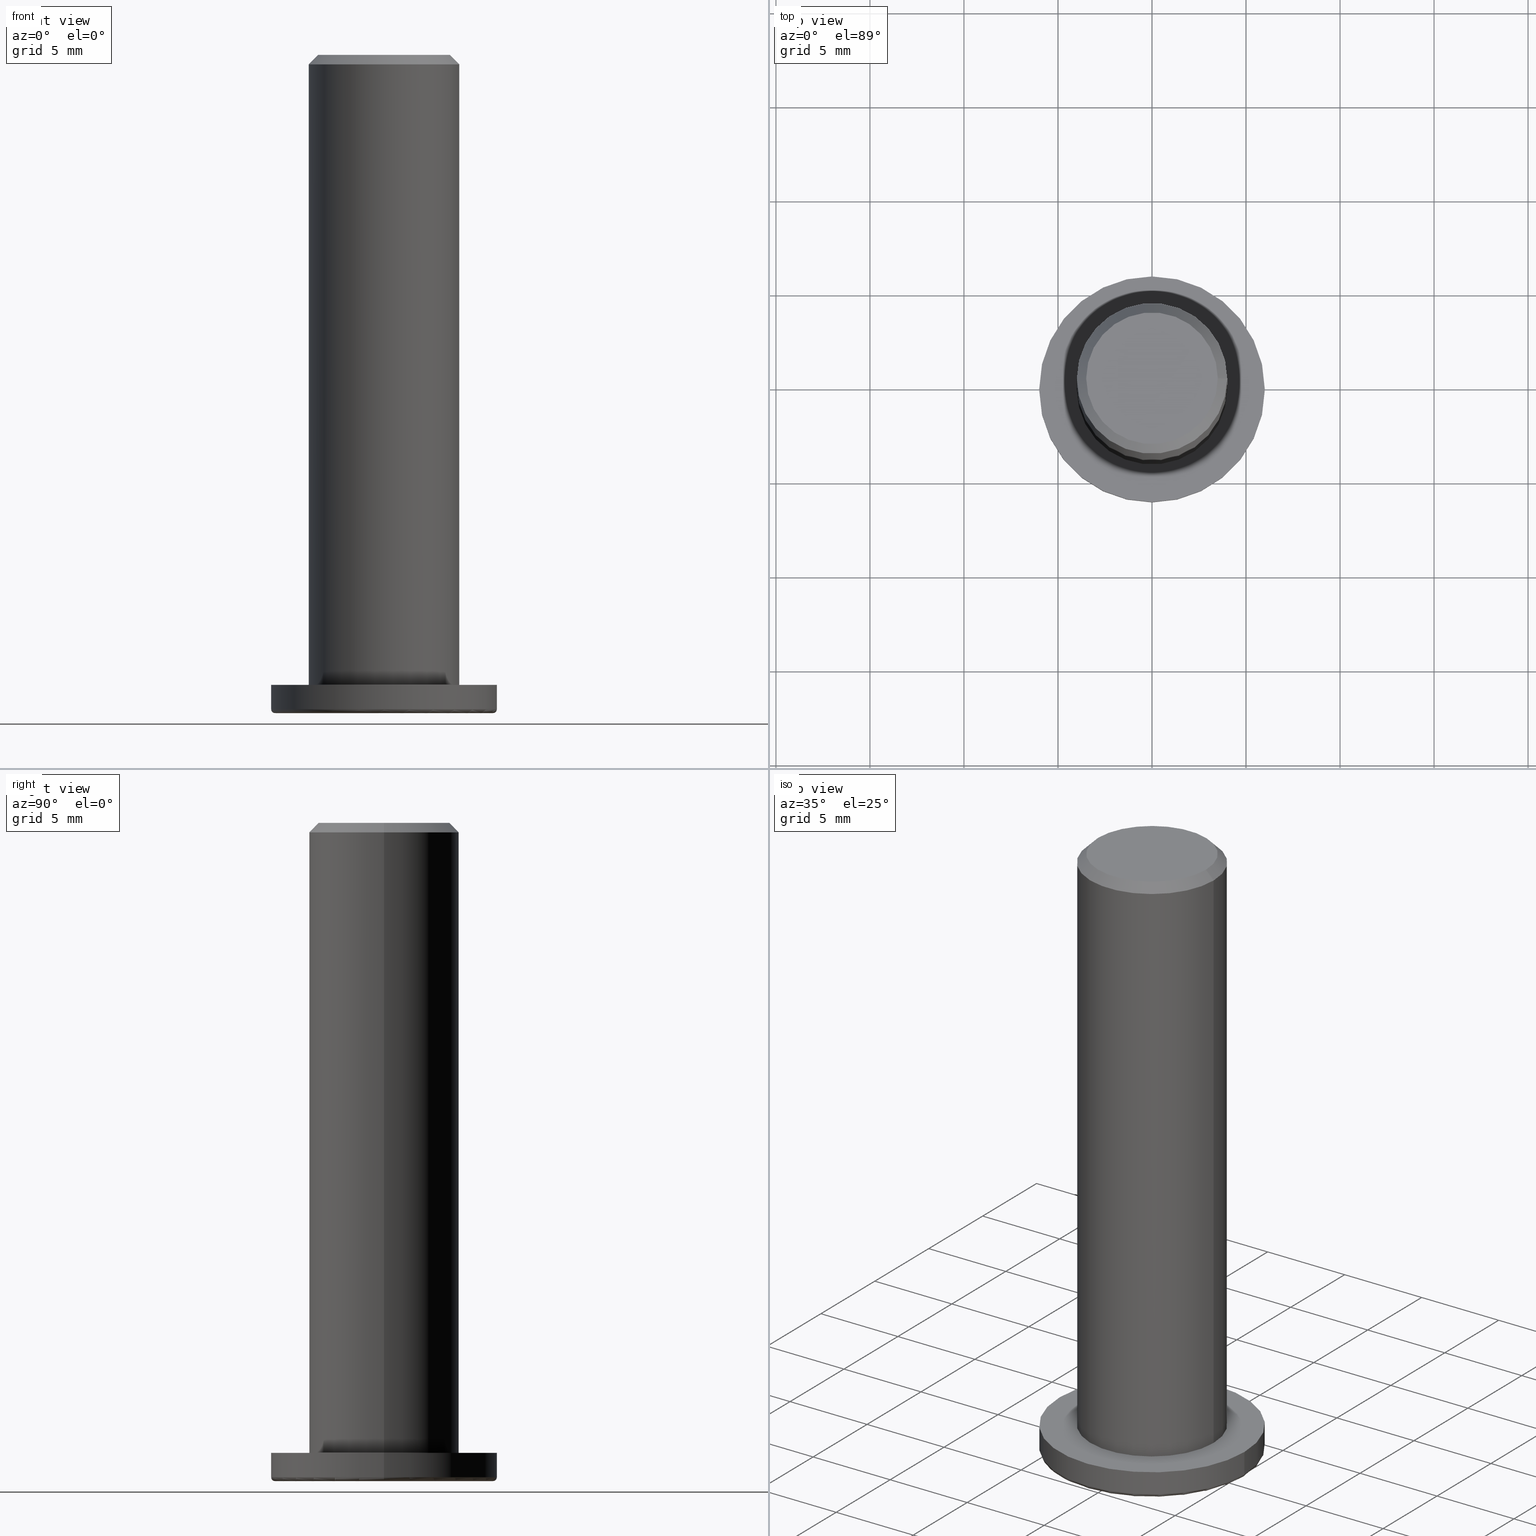
[diagram: canonical four-view strip — front | top / right | iso, engineering-drawing reading convention]
A machine part, canonical four-view strip (front | top / right | iso — engineering-drawing reading convention). The complete STEP part file that produces these views, byte-faithful:
ISO-10303-21;
HEADER;
/* Generated by software containing ST-Developer
 * from STEP Tools, Inc. (www.steptools.com) 
 */

FILE_DESCRIPTION(
/* description */ ('PERNO D8 x 35 SUPP. MOLLA GAS FE ZINC.'),
/* implementation_level */ '2;1');

FILE_NAME(
/* name */ 
'Q:\\Catalogo\\2_Accessori Dierre\\Per Download Web\\CATALOGO ACCESSOR
I PER RIPARI\\PAGINA 72\\DPEMG0000001.stp',
/* time_stamp */ '2018-01-30T15:15:19+01:00',
/* author */ ('fzagni'),
/* organization */ (''),
/* preprocessor_version */ 'ST-DEVELOPER v16.1',
/* originating_system */ 'Autodesk Inventor 2016',
/* authorisation */ '');

FILE_SCHEMA (('AUTOMOTIVE_DESIGN { 1 0 10303 214 3 1 1 }'));
ENDSEC;

DATA;
#10=MECHANICAL_DESIGN_GEOMETRIC_PRESENTATION_REPRESENTATION('',(#13),#149);
#11=SHAPE_REPRESENTATION_RELATIONSHIP('SRR','None',#158,#12);
#12=ADVANCED_BREP_SHAPE_REPRESENTATION('',(#14),#148);
#13=STYLED_ITEM('',(#167),#14);
#14=MANIFOLD_SOLID_BREP('Solido1',#83);
#15=CONICAL_SURFACE('',#91,3.75,45.0000000000001);
#16=CYLINDRICAL_SURFACE('',#89,6.);
#17=CYLINDRICAL_SURFACE('',#94,4.);
#18=PLANE('',#88);
#19=PLANE('',#96);
#20=PLANE('',#97);
#21=FACE_BOUND('',#34,.T.);
#22=FACE_BOUND('',#37,.T.);
#23=FACE_BOUND('',#39,.T.);
#24=FACE_BOUND('',#41,.T.);
#25=FACE_BOUND('',#44,.T.);
#26=FACE_OUTER_BOUND('',#33,.T.);
#27=FACE_OUTER_BOUND('',#35,.T.);
#28=FACE_OUTER_BOUND('',#36,.T.);
#29=FACE_OUTER_BOUND('',#38,.T.);
#30=FACE_OUTER_BOUND('',#40,.T.);
#31=FACE_OUTER_BOUND('',#42,.T.);
#32=FACE_OUTER_BOUND('',#43,.T.);
#33=EDGE_LOOP('',(#63));
#34=EDGE_LOOP('',(#64));
#35=EDGE_LOOP('',(#65));
#36=EDGE_LOOP('',(#66));
#37=EDGE_LOOP('',(#67));
#38=EDGE_LOOP('',(#68));
#39=EDGE_LOOP('',(#69));
#40=EDGE_LOOP('',(#70));
#41=EDGE_LOOP('',(#71));
#42=EDGE_LOOP('',(#72));
#43=EDGE_LOOP('',(#73));
#44=EDGE_LOOP('',(#74));
#45=CIRCLE('',#86,6.);
#46=CIRCLE('',#87,5.8);
#47=CIRCLE('',#90,6.);
#48=CIRCLE('',#92,4.);
#49=CIRCLE('',#93,3.5);
#50=CIRCLE('',#95,4.);
#51=VERTEX_POINT('',#128);
#52=VERTEX_POINT('',#130);
#53=VERTEX_POINT('',#134);
#54=VERTEX_POINT('',#137);
#55=VERTEX_POINT('',#139);
#56=VERTEX_POINT('',#142);
#57=EDGE_CURVE('',#51,#51,#45,.T.);
#58=EDGE_CURVE('',#52,#52,#46,.T.);
#59=EDGE_CURVE('',#53,#53,#47,.T.);
#60=EDGE_CURVE('',#54,#54,#48,.T.);
#61=EDGE_CURVE('',#55,#55,#49,.T.);
#62=EDGE_CURVE('',#56,#56,#50,.T.);
#63=ORIENTED_EDGE('',*,*,#57,.T.);
#64=ORIENTED_EDGE('',*,*,#58,.T.);
#65=ORIENTED_EDGE('',*,*,#58,.F.);
#66=ORIENTED_EDGE('',*,*,#59,.F.);
#67=ORIENTED_EDGE('',*,*,#57,.F.);
#68=ORIENTED_EDGE('',*,*,#60,.T.);
#69=ORIENTED_EDGE('',*,*,#61,.T.);
#70=ORIENTED_EDGE('',*,*,#62,.F.);
#71=ORIENTED_EDGE('',*,*,#60,.F.);
#72=ORIENTED_EDGE('',*,*,#61,.F.);
#73=ORIENTED_EDGE('',*,*,#59,.T.);
#74=ORIENTED_EDGE('',*,*,#62,.T.);
#75=TOROIDAL_SURFACE('',#85,5.8,0.2);
#76=ADVANCED_FACE('',(#26,#21),#75,.T.);
#77=ADVANCED_FACE('',(#27),#18,.F.);
#78=ADVANCED_FACE('',(#28,#22),#16,.T.);
#79=ADVANCED_FACE('',(#29,#23),#15,.T.);
#80=ADVANCED_FACE('',(#30,#24),#17,.T.);
#81=ADVANCED_FACE('',(#31),#19,.T.);
#82=ADVANCED_FACE('',(#32,#25),#20,.T.);
#83=CLOSED_SHELL('',(#76,#77,#78,#79,#80,#81,#82));
#84=AXIS2_PLACEMENT_3D('placement',#126,#98,#99);
#85=AXIS2_PLACEMENT_3D('',#127,#100,#101);
#86=AXIS2_PLACEMENT_3D('',#129,#102,#103);
#87=AXIS2_PLACEMENT_3D('',#131,#104,#105);
#88=AXIS2_PLACEMENT_3D('',#132,#106,#107);
#89=AXIS2_PLACEMENT_3D('',#133,#108,#109);
#90=AXIS2_PLACEMENT_3D('',#135,#110,#111);
#91=AXIS2_PLACEMENT_3D('',#136,#112,#113);
#92=AXIS2_PLACEMENT_3D('',#138,#114,#115);
#93=AXIS2_PLACEMENT_3D('',#140,#116,#117);
#94=AXIS2_PLACEMENT_3D('',#141,#118,#119);
#95=AXIS2_PLACEMENT_3D('',#143,#120,#121);
#96=AXIS2_PLACEMENT_3D('',#144,#122,#123);
#97=AXIS2_PLACEMENT_3D('',#145,#124,#125);
#98=DIRECTION('axis',(0.,0.,1.));
#99=DIRECTION('refdir',(1.,0.,0.));
#100=DIRECTION('center_axis',(0.,0.,-1.));
#101=DIRECTION('ref_axis',(-1.,0.,0.));
#102=DIRECTION('center_axis',(0.,0.,-1.));
#103=DIRECTION('ref_axis',(-1.,0.,0.));
#104=DIRECTION('center_axis',(0.,0.,1.));
#105=DIRECTION('ref_axis',(-1.,0.,0.));
#106=DIRECTION('center_axis',(0.,0.,1.));
#107=DIRECTION('ref_axis',(1.,0.,0.));
#108=DIRECTION('center_axis',(0.,0.,1.));
#109=DIRECTION('ref_axis',(-1.,0.,0.));
#110=DIRECTION('center_axis',(0.,0.,1.));
#111=DIRECTION('ref_axis',(-1.,0.,0.));
#112=DIRECTION('center_axis',(0.,0.,-1.));
#113=DIRECTION('ref_axis',(-1.,0.,0.));
#114=DIRECTION('center_axis',(0.,0.,1.));
#115=DIRECTION('ref_axis',(-1.,0.,0.));
#116=DIRECTION('center_axis',(0.,0.,-1.));
#117=DIRECTION('ref_axis',(-1.,0.,0.));
#118=DIRECTION('center_axis',(0.,0.,1.));
#119=DIRECTION('ref_axis',(-1.,0.,0.));
#120=DIRECTION('center_axis',(0.,0.,-1.));
#121=DIRECTION('ref_axis',(-1.,0.,0.));
#122=DIRECTION('center_axis',(0.,0.,1.));
#123=DIRECTION('ref_axis',(1.,0.,0.));
#124=DIRECTION('center_axis',(0.,0.,1.));
#125=DIRECTION('ref_axis',(1.,0.,0.));
#126=CARTESIAN_POINT('',(0.,0.,0.));
#127=CARTESIAN_POINT('Origin',(0.,0.,-0.55));
#128=CARTESIAN_POINT('',(6.,-7.34788079488412E-16,-0.55));
#129=CARTESIAN_POINT('Origin',(0.,0.,-0.55));
#130=CARTESIAN_POINT('',(5.8,7.10295143505465E-16,-0.75));
#131=CARTESIAN_POINT('Origin',(0.,0.,-0.75));
#132=CARTESIAN_POINT('Origin',(-3.69627624575467E-16,-1.54197642309049E-16,
-0.75));
#133=CARTESIAN_POINT('Origin',(0.,0.,0.));
#134=CARTESIAN_POINT('',(6.,7.34788079488412E-16,0.75));
#135=CARTESIAN_POINT('Origin',(0.,0.,0.75));
#136=CARTESIAN_POINT('Origin',(0.,0.,34.));
#137=CARTESIAN_POINT('',(4.,4.89858719658941E-16,33.75));
#138=CARTESIAN_POINT('Origin',(0.,0.,33.75));
#139=CARTESIAN_POINT('',(3.5,-4.28626379701574E-16,34.25));
#140=CARTESIAN_POINT('Origin',(0.,0.,34.25));
#141=CARTESIAN_POINT('Origin',(0.,0.,0.75));
#142=CARTESIAN_POINT('',(4.,4.89858719658941E-16,0.75));
#143=CARTESIAN_POINT('Origin',(0.,0.,0.75));
#144=CARTESIAN_POINT('Origin',(-2.72118023435153E-16,0.,34.25));
#145=CARTESIAN_POINT('Origin',(-3.69627624575467E-16,-1.54197642309049E-16,
0.75));
#146=UNCERTAINTY_MEASURE_WITH_UNIT(LENGTH_MEASURE(0.01),#150,
'DISTANCE_ACCURACY_VALUE',
'Maximum model space distance between geometric entities at asserted c
onnectivities');
#147=UNCERTAINTY_MEASURE_WITH_UNIT(LENGTH_MEASURE(1.E-6),#150,
'DISTANCE_ACCURACY_VALUE',
'Maximum model space distance between geometric entities at asserted c
onnectivities');
#148=(
GEOMETRIC_REPRESENTATION_CONTEXT(3)
GLOBAL_UNCERTAINTY_ASSIGNED_CONTEXT((#146))
GLOBAL_UNIT_ASSIGNED_CONTEXT((#150,#153,#151))
REPRESENTATION_CONTEXT('','3D')
);
#149=(
GEOMETRIC_REPRESENTATION_CONTEXT(3)
GLOBAL_UNCERTAINTY_ASSIGNED_CONTEXT((#147))
GLOBAL_UNIT_ASSIGNED_CONTEXT((#150,#153,#151))
REPRESENTATION_CONTEXT('','3D')
);
#150=(
LENGTH_UNIT()
NAMED_UNIT(*)
SI_UNIT(.MILLI.,.METRE.)
);
#151=(
NAMED_UNIT(*)
SI_UNIT($,.STERADIAN.)
SOLID_ANGLE_UNIT()
);
#152=DIMENSIONAL_EXPONENTS(0.,0.,0.,0.,0.,0.,0.);
#153=(
CONVERSION_BASED_UNIT('degree',#155)
NAMED_UNIT(#152)
PLANE_ANGLE_UNIT()
);
#154=(
NAMED_UNIT(*)
PLANE_ANGLE_UNIT()
SI_UNIT($,.RADIAN.)
);
#155=PLANE_ANGLE_MEASURE_WITH_UNIT(PLANE_ANGLE_MEASURE(0.01745329252),#154);
#156=SHAPE_DEFINITION_REPRESENTATION(#157,#158);
#157=PRODUCT_DEFINITION_SHAPE('',$,#160);
#158=SHAPE_REPRESENTATION('',(#84),#148);
#159=PRODUCT_DEFINITION_CONTEXT('part definition',#164,'design');
#160=PRODUCT_DEFINITION('XT10402','XT10402',#161,#159);
#161=PRODUCT_DEFINITION_FORMATION('','A',#166);
#162=PRODUCT_RELATED_PRODUCT_CATEGORY('XT10402','XT10402',(#166));
#163=APPLICATION_PROTOCOL_DEFINITION('international standard',
'automotive_design',2009,#164);
#164=APPLICATION_CONTEXT(
'Core Data for Automotive Mechanical Design Process');
#165=PRODUCT_CONTEXT('part definition',#164,'mechanical');
#166=PRODUCT('XT10402','XT10402',$,(#165));
#167=PRESENTATION_STYLE_ASSIGNMENT((#168));
#168=SURFACE_STYLE_USAGE(.BOTH.,#169);
#169=SURFACE_SIDE_STYLE('',(#170));
#170=SURFACE_STYLE_FILL_AREA(#171);
#171=FILL_AREA_STYLE('',(#172));
#172=FILL_AREA_STYLE_COLOUR('',#173);
#173=COLOUR_RGB('',0.83921568627451,0.886274509803922,0.854901960784314);
ENDSEC;
END-ISO-10303-21;
